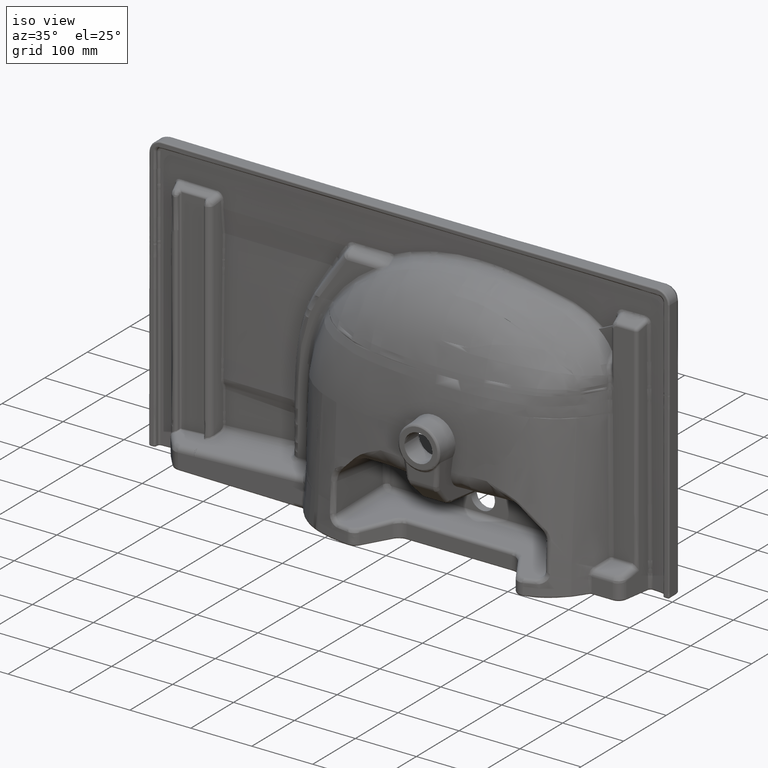
[diagram: clean part render]
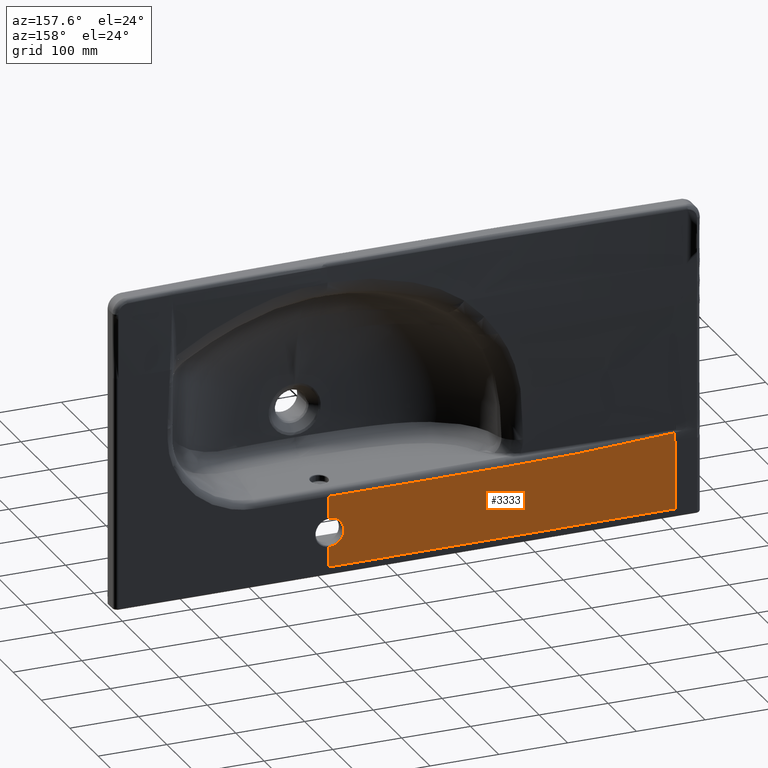
[diagram: tour spotlight — one face highlighted and labeled with its STEP entity id]
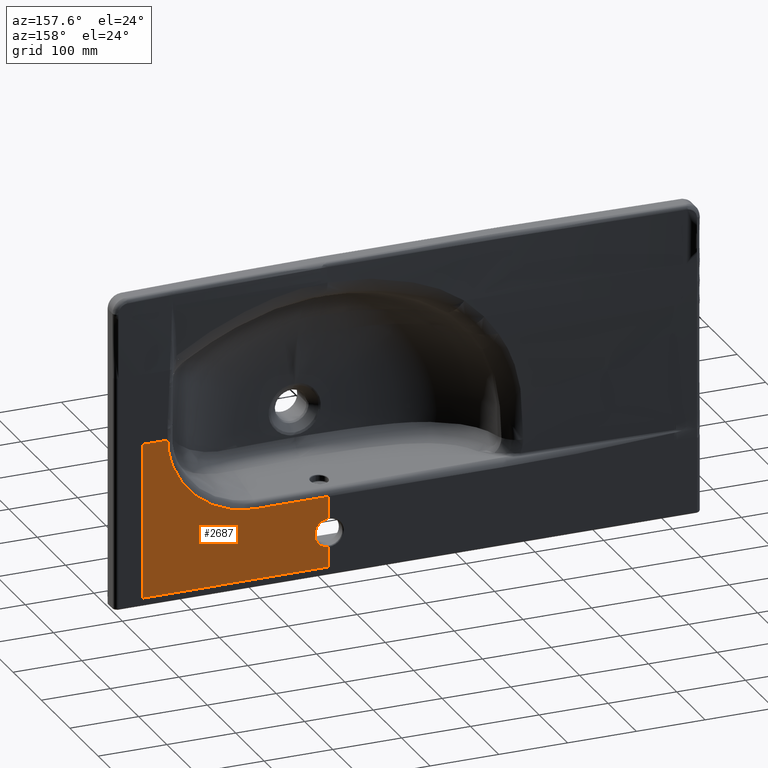
[diagram: tour spotlight — one face highlighted and labeled with its STEP entity id]
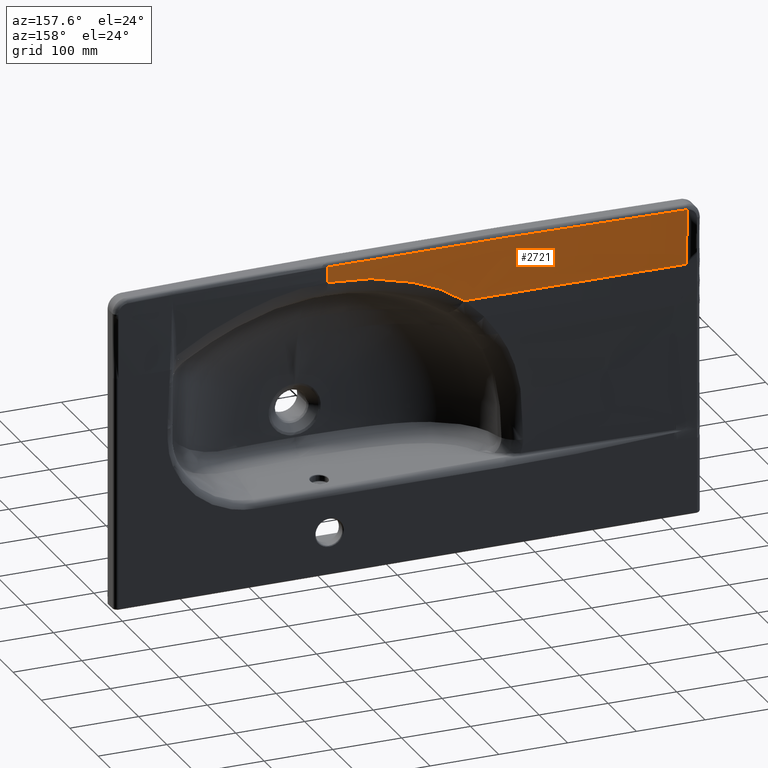
[diagram: tour spotlight — one face highlighted and labeled with its STEP entity id]
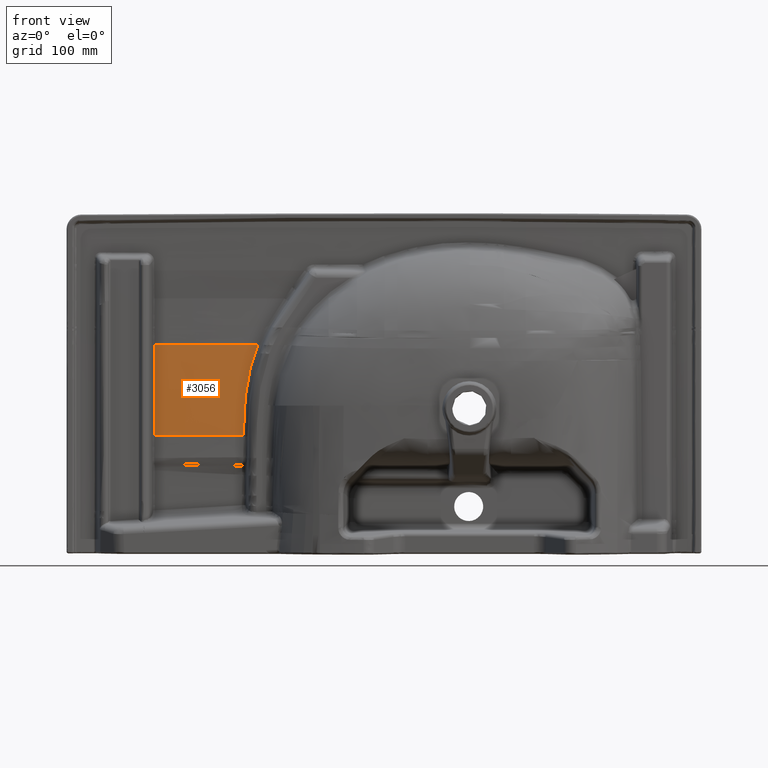
[diagram: tour spotlight — one face highlighted and labeled with its STEP entity id]
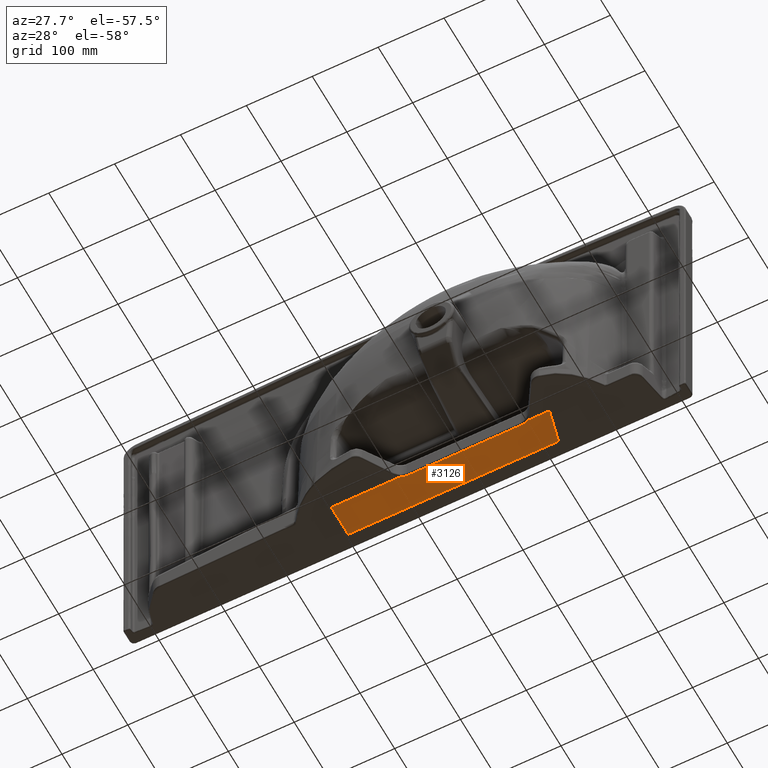
[diagram: tour spotlight — one face highlighted and labeled with its STEP entity id]
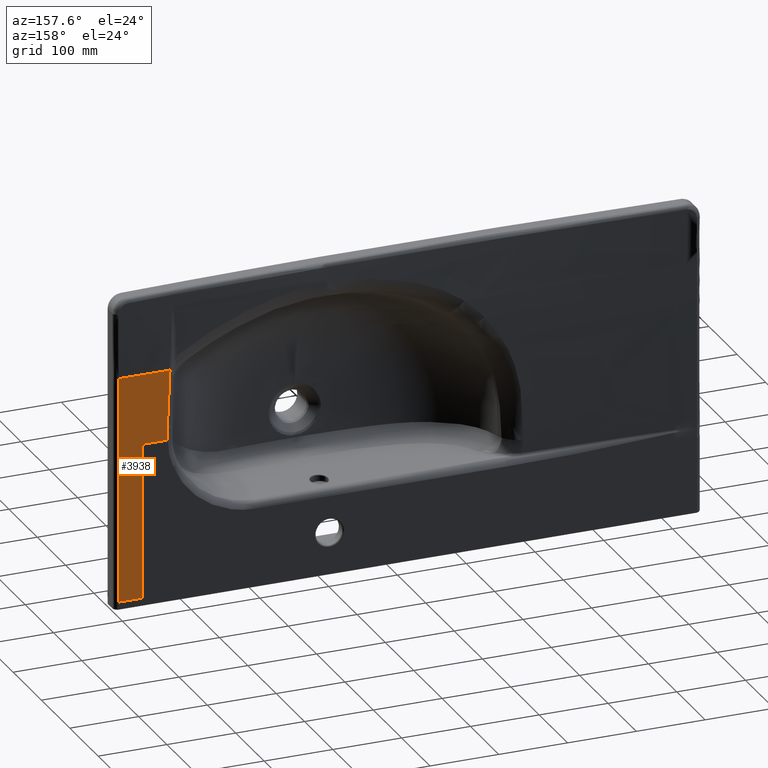
[diagram: tour spotlight — one face highlighted and labeled with its STEP entity id]
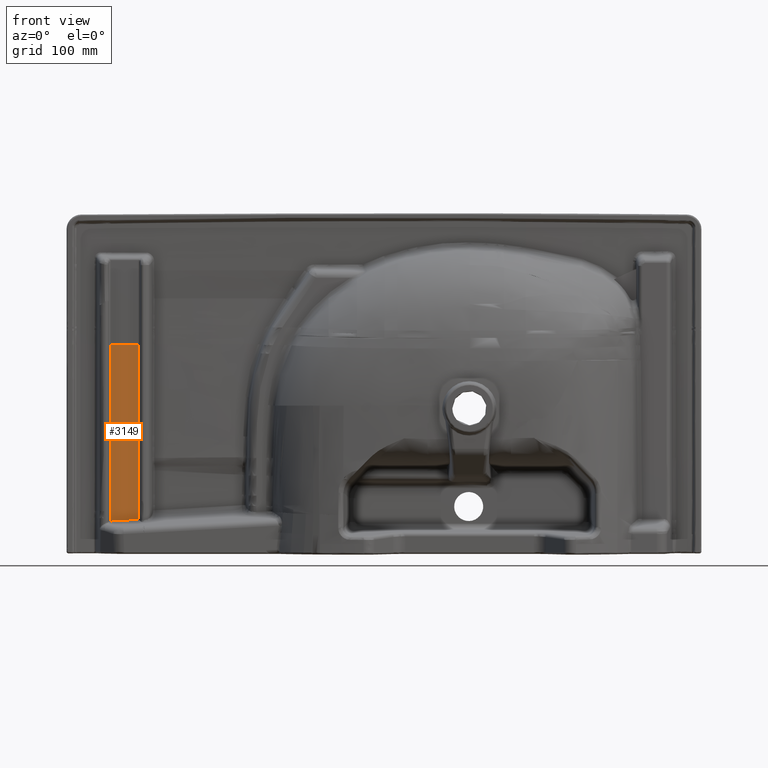
[diagram: tour spotlight — one face highlighted and labeled with its STEP entity id]
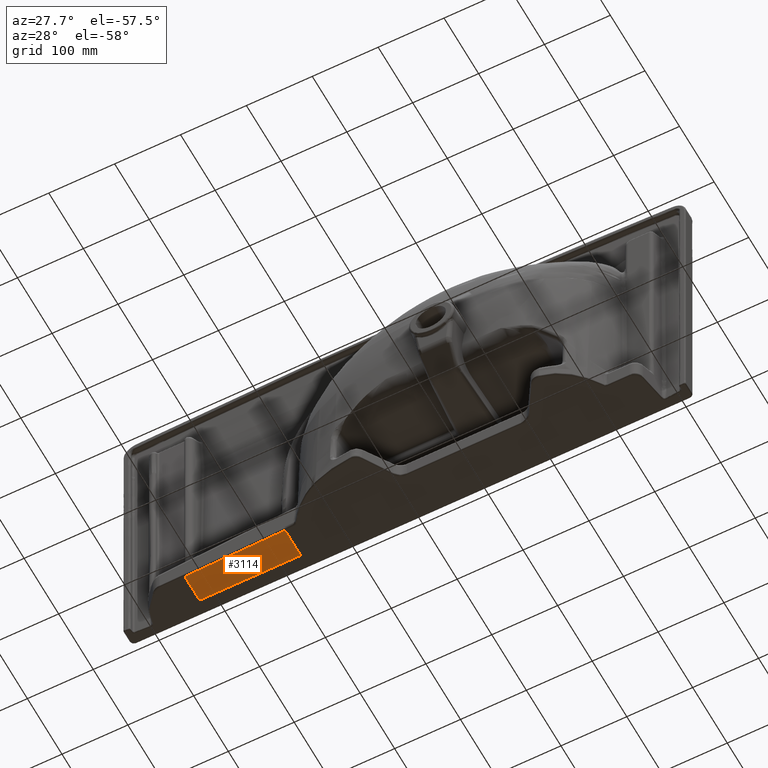
[diagram: tour spotlight — one face highlighted and labeled with its STEP entity id]
A machine part: a face-by-face anatomy tour. The part has 1315 B-rep faces; the first image is the clean iso view, then the 8 largest visible faces are spotlighted one at a time (largest first), each with its STEP entity span.

Face 1 — auxiliary view, entity #3333. In plain terms, the highlighted planar face has unit normal (0, 1, 0).
Definition (entity closure, byte-faithful):
#149=(
BOUNDED_CURVE()
B_SPLINE_CURVE(3,(#88739,#88740,#88741,#88742,#88743,#88744,#88745,#88746,
#88747,#88748),.UNSPECIFIED.,.F.,.F.)
B_SPLINE_CURVE_WITH_KNOTS((4,2,2,2,4),(0.,0.491416612916734,0.626770770470844,
0.762124928024953,1.),.UNSPECIFIED.)
CURVE()
GEOMETRIC_REPRESENTATION_ITEM()
RATIONAL_B_SPLINE_CURVE((1.,1.,1.,1.,1.,1.,1.,1.,1.,1.))
REPRESENTATION_ITEM('')
);
#598=PLANE('',#20790);
#814=LINE('',#32099,#1541);
#818=LINE('',#32110,#1545);
#1111=LINE('',#82694,#1839);
#1164=LINE('',#88737,#1892);
#1541=VECTOR('',#21275,1.);
#1545=VECTOR('',#21279,1.);
#1839=VECTOR('',#22311,1.);
#1892=VECTOR('',#22510,1.);
#3333=ADVANCED_FACE('',(#5050),#598,.T.);
#5050=FACE_OUTER_BOUND('',#6364,.T.);
#6364=EDGE_LOOP('',(#10568,#10569,#10570,#10571,#10572,#10573,#10574,#10575));
#10568=ORIENTED_EDGE('',*,*,#15463,.F.);
#10569=ORIENTED_EDGE('',*,*,#17047,.T.);
#10570=ORIENTED_EDGE('',*,*,#15468,.F.);
#10571=ORIENTED_EDGE('',*,*,#16841,.F.);
#10572=ORIENTED_EDGE('',*,*,#17042,.T.);
#10573=ORIENTED_EDGE('',*,*,#17046,.T.);
#10574=ORIENTED_EDGE('',*,*,#17045,.T.);
#10575=ORIENTED_EDGE('',*,*,#17043,.F.);
#13616=VERTEX_POINT('',#31250);
#13629=VERTEX_POINT('',#32098);
#13630=VERTEX_POINT('',#32100);
#13633=VERTEX_POINT('',#32111);
#14447=VERTEX_POINT('',#82693);
#14557=VERTEX_POINT('',#88611);
#14559=VERTEX_POINT('',#88749);
#14560=VERTEX_POINT('',#88787);
#15463=EDGE_CURVE('',#13629,#13630,#814,.T.);
#15468=EDGE_CURVE('',#13616,#13633,#818,.T.);
#16841=EDGE_CURVE('',#14447,#13616,#1111,.T.);
#17042=EDGE_CURVE('',#14447,#14557,#1164,.T.);
#17043=EDGE_CURVE('',#13630,#14559,#149,.T.);
#17045=EDGE_CURVE('',#14560,#14559,#19508,.T.);
#17046=EDGE_CURVE('',#14557,#14560,#19509,.T.);
#17047=EDGE_CURVE('',#13629,#13633,#19510,.T.);
#19508=B_SPLINE_CURVE_WITH_KNOTS('',3,(#88783,#88784,#88785,#88786),
 .UNSPECIFIED.,.F.,.F.,(4,4),(0.,1.),.UNSPECIFIED.);
#19509=B_SPLINE_CURVE_WITH_KNOTS('',3,(#88788,#88789,#88790,#88791),
 .UNSPECIFIED.,.F.,.F.,(4,4),(0.,1.),.UNSPECIFIED.);
#19510=B_SPLINE_CURVE_WITH_KNOTS('',3,(#88864,#88865,#88866,#88867,#88868,
#88869,#88870,#88871,#88872,#88873,#88874,#88875,#88876,#88877),
 .UNSPECIFIED.,.F.,.F.,(4,2,2,2,2,2,4),(0.,0.25,0.375,0.5,0.625,0.75,1.),
 .UNSPECIFIED.);
#20790=AXIS2_PLACEMENT_3D('',#88878,#22513,#22514);
#21275=DIRECTION('',(3.66007590535741E-016,-1.,0.));
#21279=DIRECTION('',(3.66007590535741E-016,-1.,0.));
#22311=DIRECTION('',(1.,0.,0.));
#22510=DIRECTION('',(0.,-1.,0.));
#22513=DIRECTION('',(0.,0.,1.));
#22514=DIRECTION('',(1.,0.,0.));
#31250=CARTESIAN_POINT('',(3.17907746523282E-013,57.4356621557597,0.106217159820729));
#32098=CARTESIAN_POINT('',(3.2891781429531E-013,-14.0634797007985,0.10621715982073));
#32099=CARTESIAN_POINT('',(3.81639164714898E-013,-158.107897857311,0.10621715982073));
#32100=CARTESIAN_POINT('',(4.5470278143628E-014,-46.2827469961502,0.106217159820732));
#32110=CARTESIAN_POINT('',(3.81639164714898E-013,-158.107897857311,0.10621715982073));
#32111=CARTESIAN_POINT('',(3.13563326220555E-013,27.8878034741736,0.10621715982073));
#82693=CARTESIAN_POINT('',(-504.019066075414,57.4356621557598,0.106217159820728));
#82694=CARTESIAN_POINT('',(-541.47700656614,57.4356621557597,0.106217159820729));
#88611=CARTESIAN_POINT('',(-504.019066075414,-42.0080921086465,0.106217159820728));
#88737=CARTESIAN_POINT('',(-504.019066075414,-385.607897857316,0.106217159820728));
#88739=CARTESIAN_POINT('',(-6.24500451351651E-014,-46.2827469962842,0.106217159820728));
#88740=CARTESIAN_POINT('',(-82.4157904506465,-46.2827469971314,0.106217159820728));
#88741=CARTESIAN_POINT('',(-164.831580905026,-46.2827469953675,0.106217159820729));
#88742=CARTESIAN_POINT('',(-269.947702584893,-46.2827469960969,0.106217159820729));
#88743=CARTESIAN_POINT('',(-292.648033816843,-46.2074607190988,0.106217159820731));
#88744=CARTESIAN_POINT('',(-338.048696278632,-46.9531732827471,0.106217159820731));
#88745=CARTESIAN_POINT('',(-360.749027507747,-47.655532059178,0.10621715982073));
#88746=CARTESIAN_POINT('',(-423.343537269422,-50.1713121606934,0.10621715982073));
#88747=CARTESIAN_POINT('',(-463.238194199468,-52.4138279033647,0.106217159820729));
#88748=CARTESIAN_POINT('',(-503.132068387611,-54.6730683248413,0.106217159820749));
#88749=CARTESIAN_POINT('',(-503.132099388589,-54.6731555118038,0.107888893968717));
#88783=CARTESIAN_POINT('',(-503.132068387611,-42.0080921086466,0.106217159820728));
#88784=CARTESIAN_POINT('',(-503.132080629238,-46.229774181596,0.106217159820728));
#88785=CARTESIAN_POINT('',(-503.132092870864,-50.4514562545453,0.106217159820728));
#88786=CARTESIAN_POINT('',(-503.132105112491,-54.6731383274947,0.106217159820728));
#88787=CARTESIAN_POINT('',(-503.132068387611,-42.0080921086466,0.106217159820729));
#88788=CARTESIAN_POINT('',(-504.019066075414,-42.0080921086466,0.106217159820728));
#88789=CARTESIAN_POINT('',(-503.723400179479,-42.0080921086466,0.106217159820728));
#88790=CARTESIAN_POINT('',(-503.427734283545,-42.0080921086466,0.106217159820728));
#88791=CARTESIAN_POINT('',(-503.132068387611,-42.0080921086466,0.106217159820728));
#88864=CARTESIAN_POINT('',(3.29235046263519E-013,-14.0634797007986,0.106217159820728));
#88865=CARTESIAN_POINT('',(-5.69809019747056,-14.3416826665858,0.106217159820728));
#88866=CARTESIAN_POINT('',(-11.4479155328702,-12.1460110882703,0.106217159820728));
#88867=CARTESIAN_POINT('',(-17.5507761280391,-6.31093326711224,0.106217159820728));
#88868=CARTESIAN_POINT('',(-19.1825678463299,-3.92673734176329,0.106217159820724));
#88869=CARTESIAN_POINT('',(-21.4048146123892,1.28540675195654,0.106217159820724));
#88870=CARTESIAN_POINT('',(-21.9951901013856,4.07155730679506,0.10621715982073));
#88871=CARTESIAN_POINT('',(-21.9916047756276,9.77942734763317,0.10621715982073));
#88872=CARTESIAN_POINT('',(-21.4116095208351,12.5218710591779,0.10621715982073));
#88873=CARTESIAN_POINT('',(-19.1772435080818,17.7646404347856,0.10621715982073));
#88874=CARTESIAN_POINT('',(-17.5721964096692,20.1164961087354,0.106217159820731));
#88875=CARTESIAN_POINT('',(-11.3844657824351,26.027533540295,0.106217159820731));
#88876=CARTESIAN_POINT('',(-5.69971743443026,28.1661391552205,0.106217159820728));
#88877=CARTESIAN_POINT('',(3.23375768572796E-013,27.8878034741735,0.106217159820728));
#88878=CARTESIAN_POINT('',(-541.47700656614,-385.607897857316,0.106217159820728));

Face 2 — auxiliary view, entity #2687. In plain terms, the highlighted planar face has unit normal (0, 1, 0).
Definition (entity closure, byte-faithful):
#456=PLANE('',#20347);
#811=LINE('',#31249,#1536);
#814=LINE('',#32099,#1541);
#815=LINE('',#32101,#1542);
#816=LINE('',#32107,#1543);
#817=LINE('',#32109,#1544);
#818=LINE('',#32110,#1545);
#1536=VECTOR('',#21268,1.);
#1541=VECTOR('',#21275,1.);
#1542=VECTOR('',#21276,1.);
#1543=VECTOR('',#21277,1.);
#1544=VECTOR('',#21278,1.);
#1545=VECTOR('',#21279,1.);
#2687=ADVANCED_FACE('',(#4408),#456,.T.);
#4408=FACE_OUTER_BOUND('',#5714,.T.);
#5714=EDGE_LOOP('',(#7513,#7514,#7515,#7516,#7517,#7518,#7519,#7520,#7521,
#7522,#7523));
#7513=ORIENTED_EDGE('',*,*,#15461,.T.);
#7514=ORIENTED_EDGE('',*,*,#15462,.T.);
#7515=ORIENTED_EDGE('',*,*,#15463,.T.);
#7516=ORIENTED_EDGE('',*,*,#15464,.F.);
#7517=ORIENTED_EDGE('',*,*,#15459,.F.);
#7518=ORIENTED_EDGE('',*,*,#15465,.F.);
#7519=ORIENTED_EDGE('',*,*,#15466,.F.);
#7520=ORIENTED_EDGE('',*,*,#15467,.F.);
#7521=ORIENTED_EDGE('',*,*,#15445,.F.);
#7522=ORIENTED_EDGE('',*,*,#15468,.T.);
#7523=ORIENTED_EDGE('',*,*,#15469,.T.);
#13616=VERTEX_POINT('',#31250);
#13617=VERTEX_POINT('',#31251);
#13625=VERTEX_POINT('',#31962);
#13626=VERTEX_POINT('',#31977);
#13627=VERTEX_POINT('',#32092);
#13628=VERTEX_POINT('',#32093);
#13629=VERTEX_POINT('',#32098);
#13630=VERTEX_POINT('',#32100);
#13631=VERTEX_POINT('',#32106);
#13632=VERTEX_POINT('',#32108);
#13633=VERTEX_POINT('',#32111);
#15445=EDGE_CURVE('',#13616,#13617,#811,.T.);
#15459=EDGE_CURVE('',#13625,#13626,#18511,.T.);
#15461=EDGE_CURVE('',#13627,#13628,#18513,.T.);
#15462=EDGE_CURVE('',#13628,#13629,#18514,.T.);
#15463=EDGE_CURVE('',#13629,#13630,#814,.T.);
#15464=EDGE_CURVE('',#13626,#13630,#815,.T.);
#15465=EDGE_CURVE('',#13631,#13625,#18515,.T.);
#15466=EDGE_CURVE('',#13632,#13631,#816,.T.);
#15467=EDGE_CURVE('',#13617,#13632,#817,.T.);
#15468=EDGE_CURVE('',#13616,#13633,#818,.T.);
#15469=EDGE_CURVE('',#13633,#13627,#18516,.T.);
#18511=B_SPLINE_CURVE_WITH_KNOTS('',3,(#31963,#31964,#31965,#31966,#31967,
#31968,#31969,#31970,#31971,#31972,#31973,#31974,#31975,#31976),
 .UNSPECIFIED.,.F.,.F.,(4,2,2,2,2,2,4),(0.,0.25,0.375,0.5,0.625,0.75,1.),
 .UNSPECIFIED.);
#18513=B_SPLINE_CURVE_WITH_KNOTS('',3,(#32080,#32081,#32082,#32083,#32084,
#32085,#32086,#32087,#32088,#32089,#32090,#32091),.UNSPECIFIED.,.F.,.F.,
(4,2,2,2,2,4),(0.,0.25,0.5,0.625,0.75,1.),.UNSPECIFIED.);
#18514=B_SPLINE_CURVE_WITH_KNOTS('',3,(#32094,#32095,#32096,#32097),
 .UNSPECIFIED.,.F.,.F.,(4,4),(0.,1.),.UNSPECIFIED.);
#18515=B_SPLINE_CURVE_WITH_KNOTS('',3,(#32102,#32103,#32104,#32105),
 .UNSPECIFIED.,.F.,.F.,(4,4),(0.,1.),.UNSPECIFIED.);
#18516=B_SPLINE_CURVE_WITH_KNOTS('',3,(#32112,#32113,#32114,#32115),
 .UNSPECIFIED.,.F.,.F.,(4,4),(0.,1.),.UNSPECIFIED.);
#20347=AXIS2_PLACEMENT_3D('',#32116,#21280,#21281);
#21268=DIRECTION('',(1.,0.,0.));
#21275=DIRECTION('',(3.66007590535741E-016,-1.,0.));
#21276=DIRECTION('',(-1.,5.22044161745777E-015,0.));
#21277=DIRECTION('',(-1.,0.,0.));
#21278=DIRECTION('',(0.,-1.,0.));
#21279=DIRECTION('',(3.66007590535741E-016,-1.,0.));
#21280=DIRECTION('',(0.,0.,1.));
#21281=DIRECTION('',(1.,0.,0.));
#31249=CARTESIAN_POINT('',(-541.47700656614,57.4356621557597,0.106217159820729));
#31250=CARTESIAN_POINT('',(3.17907746523282E-013,57.4356621557597,0.106217159820729));
#31251=CARTESIAN_POINT('',(270.616368166448,57.4356621557598,0.106217159820729));
#31962=CARTESIAN_POINT('',(226.355082390962,-128.383308463468,0.10620380534889));
#31963=CARTESIAN_POINT('',(226.354617320344,-128.383493115068,0.106199150572051));
#31964=CARTESIAN_POINT('',(221.596138661918,-116.281778739739,0.106199337236329));
#31965=CARTESIAN_POINT('',(214.962100265724,-104.890747978155,0.106199454421758));
#31966=CARTESIAN_POINT('',(202.911072750374,-89.827012399227,0.106199528739728));
#31967=CARTESIAN_POINT('',(198.539903763326,-85.1241480887617,0.106199536881656));
#31968=CARTESIAN_POINT('',(189.058827912083,-76.3604380915556,0.106199518454517));
#31969=CARTESIAN_POINT('',(183.926256262375,-72.287687525452,0.106199491840819));
#31970=CARTESIAN_POINT('',(173.25471993931,-65.0450300618052,0.106199406139892));
#31971=CARTESIAN_POINT('',(167.689385783536,-61.8424031995059,0.106199347188423));
#31972=CARTESIAN_POINT('',(156.086696938094,-56.2707228131066,0.106199194309791));
#31973=CARTESIAN_POINT('',(150.004792602012,-53.8937382506424,0.106199099083426));
#31974=CARTESIAN_POINT('',(131.424005228947,-48.2033946720243,0.106198770609271));
#31975=CARTESIAN_POINT('',(118.718453524064,-46.2827458863297,0.106198497612174));
#31976=CARTESIAN_POINT('',(105.686427405937,-46.2827469881555,0.106198150782665));
#31977=CARTESIAN_POINT('',(105.686427405937,-46.2827469907503,0.106207655302272));
#32080=CARTESIAN_POINT('',(0.0792334064624198,27.8837770571822,0.106217159820728));
#32081=CARTESIAN_POINT('',(5.43376767110777,27.6005429825294,0.106217159820728));
#32082=CARTESIAN_POINT('',(10.5986768638729,25.2081626015606,0.106217159820727));
#32083=CARTESIAN_POINT('',(17.8696959761077,17.5373969315864,0.106217159820727));
#32084=CARTESIAN_POINT('',(20.0097727051353,12.2635093432463,0.106217159820725));
#32085=CARTESIAN_POINT('',(20.0050046476134,4.21781908671252,0.106217159820725));
#32086=CARTESIAN_POINT('',(19.4792118243801,1.59613284797841,0.10621715982073));
#32087=CARTESIAN_POINT('',(17.4997787043709,-3.35107136469839,0.10621715982073));
#32088=CARTESIAN_POINT('',(16.0529849964594,-5.63099102983842,0.106217159820724));
#32089=CARTESIAN_POINT('',(10.5801012725313,-11.4007742162655,0.106217159820724));
#32090=CARTESIAN_POINT('',(5.43249394560012,-13.7762872492956,0.106217159820728));
#32091=CARTESIAN_POINT('',(0.0792333267444508,-14.0594536673352,0.106217159820728));
#32092=CARTESIAN_POINT('',(0.0792334068704549,27.883777064911,0.106217159820728));
#32093=CARTESIAN_POINT('',(0.0792333267444503,-14.0594536673352,0.106217159820728));
#32094=CARTESIAN_POINT('',(0.0792333271527097,-14.0594536750682,0.106217159820728));
#32095=CARTESIAN_POINT('',(0.0528249222891153,-14.0608478848349,0.106217159820728));
#32096=CARTESIAN_POINT('',(0.0264137189134642,-14.0621900801214,0.106217159820728));
#32097=CARTESIAN_POINT('',(3.29235046263519E-013,-14.0634797007986,0.106217159820728));
#32098=CARTESIAN_POINT('',(3.2891781429531E-013,-14.0634797007985,0.10621715982073));
#32099=CARTESIAN_POINT('',(3.81639164714898E-013,-158.107897857311,0.10621715982073));
#32100=CARTESIAN_POINT('',(4.5470278143628E-014,-46.2827469961502,0.106217159820732));
#32101=CARTESIAN_POINT('',(-114.811006566141,-46.2827469959397,0.106217159820729));
#32102=CARTESIAN_POINT('',(234.127512492295,-168.775085306999,0.106190350211092));
#32103=CARTESIAN_POINT('',(233.638193970001,-154.997496047211,0.106186958665212));
#32104=CARTESIAN_POINT('',(231.594766594948,-141.174331971504,0.106183876447546));
#32105=CARTESIAN_POINT('',(226.355548750188,-128.383126892193,0.106182575043035));
#32106=CARTESIAN_POINT('',(234.1274931907,-168.775085992502,0.106203755015927));
#32107=CARTESIAN_POINT('',(-541.47700656614,-168.775086678005,0.106217159820726));
#32108=CARTESIAN_POINT('',(270.616368166448,-168.775086678005,0.10621715982073));
#32109=CARTESIAN_POINT('',(270.616368166448,-385.607897857316,0.106217159820728));
#32110=CARTESIAN_POINT('',(3.81639164714898E-013,-158.107897857311,0.10621715982073));
#32111=CARTESIAN_POINT('',(3.13563326220555E-013,27.8878034741736,0.10621715982073));
#32112=CARTESIAN_POINT('',(3.13859465930597E-013,27.8878034741735,0.106217159820728));
#32113=CARTESIAN_POINT('',(0.0264137398757234,27.8865136056209,0.106217159820728));
#32114=CARTESIAN_POINT('',(0.0528249691397224,27.8851712785642,0.106217159820728));
#32115=CARTESIAN_POINT('',(0.0792334068704549,27.883777064911,0.106217159820728));
#32116=CARTESIAN_POINT('',(-541.47700656614,-385.607897857316,0.106217159820728));

Face 3 — auxiliary view, entity #2721. In plain terms, the highlighted face is a freeform B-spline surface patch.
Definition (entity closure, byte-faithful):
#2271=B_SPLINE_SURFACE_WITH_KNOTS('',3,3,((#42226,#42227,#42228,#42229,
#42230,#42231,#42232,#42233,#42234,#42235,#42236,#42237,#42238,#42239,#42240,
#42241),(#42242,#42243,#42244,#42245,#42246,#42247,#42248,#42249,#42250,
#42251,#42252,#42253,#42254,#42255,#42256,#42257),(#42258,#42259,#42260,
#42261,#42262,#42263,#42264,#42265,#42266,#42267,#42268,#42269,#42270,#42271,
#42272,#42273),(#42274,#42275,#42276,#42277,#42278,#42279,#42280,#42281,
#42282,#42283,#42284,#42285,#42286,#42287,#42288,#42289),(#42290,#42291,
#42292,#42293,#42294,#42295,#42296,#42297,#42298,#42299,#42300,#42301,#42302,
#42303,#42304,#42305),(#42306,#42307,#42308,#42309,#42310,#42311,#42312,
#42313,#42314,#42315,#42316,#42317,#42318,#42319,#42320,#42321),(#42322,
#42323,#42324,#42325,#42326,#42327,#42328,#42329,#42330,#42331,#42332,#42333,
#42334,#42335,#42336,#42337)),.UNSPECIFIED.,.F.,.F.,.F.,(4,1,1,1,4),(4,
1,1,1,1,1,1,1,1,1,1,1,1,4),(0.,0.2,0.52,0.84,1.),(0.,0.2,0.36538854687315,
0.448082820309725,0.5307770937463,0.551450662105444,0.561787446285016,0.572124230464588,
0.592797798823732,0.613471367182875,0.69616564061945,0.778859914056025,
0.8615541874926,1.),.UNSPECIFIED.);
#2721=ADVANCED_FACE('',(#4442),#2271,.F.);
#4442=FACE_OUTER_BOUND('',#5748,.T.);
#5748=EDGE_LOOP('',(#7683,#7684,#7685,#7686,#7687));
#7683=ORIENTED_EDGE('',*,*,#15575,.T.);
#7684=ORIENTED_EDGE('',*,*,#15576,.T.);
#7685=ORIENTED_EDGE('',*,*,#15577,.F.);
#7686=ORIENTED_EDGE('',*,*,#15569,.F.);
#7687=ORIENTED_EDGE('',*,*,#15549,.T.);
#13479=VERTEX_POINT('',#23992);
#13685=VERTEX_POINT('',#41780);
#13700=VERTEX_POINT('',#41972);
#13704=VERTEX_POINT('',#42118);
#13705=VERTEX_POINT('',#42221);
#15549=EDGE_CURVE('',#13685,#13479,#18567,.T.);
#15569=EDGE_CURVE('',#13685,#13700,#18587,.T.);
#15575=EDGE_CURVE('',#13479,#13704,#18593,.T.);
#15576=EDGE_CURVE('',#13704,#13705,#18594,.T.);
#15577=EDGE_CURVE('',#13700,#13705,#18595,.T.);
#18567=B_SPLINE_CURVE_WITH_KNOTS('',3,(#41776,#41777,#41778,#41779),
 .UNSPECIFIED.,.F.,.F.,(4,4),(0.,1.),.UNSPECIFIED.);
#18587=B_SPLINE_CURVE_WITH_KNOTS('',3,(#41965,#41966,#41967,#41968,#41969,
#41970,#41971),.UNSPECIFIED.,.F.,.F.,(4,3,4),(0.,0.505866875422544,1.),
 .UNSPECIFIED.);
#18593=B_SPLINE_CURVE_WITH_KNOTS('',3,(#42119,#42120,#42121,#42122),
 .UNSPECIFIED.,.F.,.F.,(4,4),(0.,1.),.UNSPECIFIED.);
#18594=B_SPLINE_CURVE_WITH_KNOTS('',3,(#42203,#42204,#42205,#42206,#42207,
#42208,#42209,#42210,#42211,#42212,#42213,#42214,#42215,#42216,#42217,#42218,
#42219,#42220),.UNSPECIFIED.,.F.,.F.,(4,2,2,2,2,2,2,2,4),(0.,0.125,0.25,
0.375,0.5,0.625,0.75,0.875,1.),.UNSPECIFIED.);
#18595=B_SPLINE_CURVE_WITH_KNOTS('',3,(#42222,#42223,#42224,#42225),
 .UNSPECIFIED.,.F.,.F.,(4,4),(0.,1.),.UNSPECIFIED.);
#23992=CARTESIAN_POINT('',(0.00107677511551454,-381.493112712071,-4.90067066176906));
#41776=CARTESIAN_POINT('',(-521.587334125702,-379.62239633034,-0.340244903977643));
#41777=CARTESIAN_POINT('',(-347.765844661524,-380.953673638161,-4.68552116525192));
#41778=CARTESIAN_POINT('',(-173.875103517704,-381.756667752848,-6.14534209331214));
#41779=CARTESIAN_POINT('',(0.00108487920533761,-381.492541964415,-4.90074799756914));
#41780=CARTESIAN_POINT('',(-521.587336576359,-379.622527686874,-0.340245295468438));
#41965=CARTESIAN_POINT('',(-521.587334125702,-379.62239633034,-0.34024490397764));
#41966=CARTESIAN_POINT('',(-521.335828434281,-366.141254388373,-0.300164436225889));
#41967=CARTESIAN_POINT('',(-521.08440334554,-352.660096306645,-0.263315402554289));
#41968=CARTESIAN_POINT('',(-520.833300995188,-339.178908514385,-0.239379328440537));
#41969=CARTESIAN_POINT('',(-520.588023061691,-326.010422125723,-0.21599846089221));
#41970=CARTESIAN_POINT('',(-520.342685029935,-312.84192371246,-0.19022605613855));
#41971=CARTESIAN_POINT('',(-520.096720781035,-299.673527589224,-0.139365188945907));
#41972=CARTESIAN_POINT('',(-520.096721045464,-299.673543201466,-0.139390806277187));
#42118=CARTESIAN_POINT('',(0.0188558508514925,-359.312734477806,-3.96740864022551));
#42119=CARTESIAN_POINT('',(0.00108706514102168,-381.492999513126,-4.9007707342712));
#42120=CARTESIAN_POINT('',(0.00108571415267508,-374.106457348925,-4.5334652728759));
#42121=CARTESIAN_POINT('',(0.00107717512805519,-366.717949268498,-4.18513795038626));
#42122=CARTESIAN_POINT('',(0.00108827645083748,-359.326370207681,-3.96837475717889));
#42203=CARTESIAN_POINT('',(0.0191486943529019,-359.340713589469,-3.96869333693151));
#42204=CARTESIAN_POINT('',(-8.86643458867827,-359.431283283673,-4.02164417986603));
#42205=CARTESIAN_POINT('',(-17.7809573439585,-359.375869733963,-4.0648204692562));
#42206=CARTESIAN_POINT('',(-35.396334206586,-358.282400317191,-4.10754855025444));
#42207=CARTESIAN_POINT('',(-44.0930369251561,-357.207841485728,-4.10610891793387));
#42208=CARTESIAN_POINT('',(-61.4028159696638,-354.661032154106,-4.08480260182163));
#42209=CARTESIAN_POINT('',(-70.0144328767716,-353.181839974567,-4.06470735006872));
#42210=CARTESIAN_POINT('',(-87.1114301153336,-349.622994571455,-4.00623020650684));
#42211=CARTESIAN_POINT('',(-95.5685710106061,-347.408994389921,-3.96535243656055));
#42212=CARTESIAN_POINT('',(-112.370475011038,-342.446397006772,-3.87139872102927));
#42213=CARTESIAN_POINT('',(-120.734475825802,-339.789327943805,-3.81957972642014));
#42214=CARTESIAN_POINT('',(-137.309480826583,-333.74745252792,-3.69295704058683));
#42215=CARTESIAN_POINT('',(-145.604649610582,-330.610709859792,-3.62237160093291));
#42216=CARTESIAN_POINT('',(-161.514759125117,-323.215545026597,-3.43395657752522));
#42217=CARTESIAN_POINT('',(-169.243028327495,-319.114011061076,-3.31871440427373));
#42218=CARTESIAN_POINT('',(-184.264621067934,-310.1368285777,-3.02826972043408));
#42219=CARTESIAN_POINT('',(-191.470346173961,-305.105031188883,-2.84872357750995));
#42220=CARTESIAN_POINT('',(-198.378168703944,-299.543112936435,-2.6253899011663));
#42221=CARTESIAN_POINT('',(-198.378245463887,-299.543193847152,-2.62547480484633));
#42222=CARTESIAN_POINT('',(-520.096721309893,-299.673558813708,-0.139416423608434));
#42223=CARTESIAN_POINT('',(-412.859702682704,-299.61363303753,-1.28286834997273));
#42224=CARTESIAN_POINT('',(-305.619878182385,-299.571331233102,-2.0900348623724));
#42225=CARTESIAN_POINT('',(-198.378267496383,-299.543264810019,-2.62557411755788));
#42226=CARTESIAN_POINT('',(167.28554645426,-415.196764383058,-4.15389253869563));
#42227=CARTESIAN_POINT('',(167.290308920846,-404.067770417978,-3.7247557955718));
#42228=CARTESIAN_POINT('',(167.297998628186,-383.727855711878,-2.98138670476558));
#42229=CARTESIAN_POINT('',(167.304408443583,-358.761097848779,-2.1911773373295));
#42230=CARTESIAN_POINT('',(167.310019490159,-340.309917476199,-2.56391858506383));
#42231=CARTESIAN_POINT('',(167.316166391224,-329.928023848436,-2.9048418135176));
#42232=CARTESIAN_POINT('',(167.314548948221,-323.584072153706,-3.07646346079433));
#42233=CARTESIAN_POINT('',(167.318961056705,-321.277290233741,-3.13437932750135));
#42234=CARTESIAN_POINT('',(167.314744246467,-318.970505058871,-3.18902026320067));
#42235=CARTESIAN_POINT('',(167.301036100243,-316.087089270212,-3.25121945340123));
#42236=CARTESIAN_POINT('',(167.286235303186,-309.167457851861,-3.37974075494513));
#42237=CARTESIAN_POINT('',(167.292563565799,-298.789861346055,-3.48699951895002));
#42238=CARTESIAN_POINT('',(167.286074040922,-284.958488506888,-3.35839074330695));
#42239=CARTESIAN_POINT('',(167.278776105702,-268.031669744683,-2.84312688553725));
#42240=CARTESIAN_POINT('',(167.27124808942,-255.730483981136,-2.16305499440444));
#42241=CARTESIAN_POINT('',(167.265883623174,-248.034758365246,-1.64762162016983));
#42242=CARTESIAN_POINT('',(111.527697403861,-416.089692627234,-5.33760217197289));
#42243=CARTESIAN_POINT('',(111.530603446307,-404.891111186663,-4.82485124040449));
#42244=CARTESIAN_POINT('',(111.535228583175,-384.424689180022,-3.92563009602243));
#42245=CARTESIAN_POINT('',(111.538857109178,-359.304660152221,-2.93505481843542));
#42246=CARTESIAN_POINT('',(111.542161096293,-340.741968472871,-3.08420542355607));
#42247=CARTESIAN_POINT('',(111.545987917335,-330.297593271585,-3.28901330800272));
#42248=CARTESIAN_POINT('',(111.544718876312,-323.915423149088,-3.38040573218098));
#42249=CARTESIAN_POINT('',(111.547586805977,-321.594726282278,-3.40949932332579));
#42250=CARTESIAN_POINT('',(111.544698920712,-319.274041193929,-3.43560201523352));
#42251=CARTESIAN_POINT('',(111.53545744173,-316.373256928622,-3.46256553375006));
#42252=CARTESIAN_POINT('',(111.525316236384,-309.411856722462,-3.50780162752545));
#42253=CARTESIAN_POINT('',(111.529000280709,-298.971433316029,-3.49551377504809));
#42254=CARTESIAN_POINT('',(111.523520213483,-285.05587057151,-3.23179908150611));
#42255=CARTESIAN_POINT('',(111.516682892208,-268.02492865692,-2.58501793334611));
#42256=CARTESIAN_POINT('',(111.509666025641,-255.646458739896,-1.82384436590014));
#42257=CARTESIAN_POINT('',(111.504673274589,-247.901908045003,-1.26193477437879));
#42258=CARTESIAN_POINT('',(-33.4512703709999,-417.851763719516,-7.66951618562337));
#42259=CARTESIAN_POINT('',(-33.4525318208156,-406.515513940729,-6.99779836283679));
#42260=CARTESIAN_POINT('',(-33.4546702273355,-385.799204847578,-5.80011014082046));
#42261=CARTESIAN_POINT('',(-33.4567961492531,-360.377589084867,-4.41949088996673));
#42262=CARTESIAN_POINT('',(-33.4584002580695,-341.596513601587,-4.08394235014233));
#42263=CARTESIAN_POINT('',(-33.4599923745839,-331.029930705582,-3.98920838596134));
#42264=CARTESIAN_POINT('',(-33.4599807940404,-324.572986468718,-3.90522363584473));
#42265=CARTESIAN_POINT('',(-33.460991446971,-322.225053939318,-3.8714588762591));
#42266=CARTESIAN_POINT('',(-33.4602878449752,-319.87717227513,-3.83544170003997));
#42267=CARTESIAN_POINT('',(-33.4577456362091,-316.942408969554,-3.78589192934218));
#42268=CARTESIAN_POINT('',(-33.4553630561067,-309.899239512715,-3.6508251801134));
#42269=CARTESIAN_POINT('',(-33.4579407088283,-299.335710561092,-3.3820741705731));
#42270=CARTESIAN_POINT('',(-33.45997849216,-285.254913257911,-2.83956148488182));
#42271=CARTESIAN_POINT('',(-33.4646167631749,-268.018969148857,-1.93960058788262));
#42272=CARTESIAN_POINT('',(-33.4695757511496,-255.487392036103,-1.03216873673525));
#42273=CARTESIAN_POINT('',(-33.4731457180265,-247.645841340699,-0.389867923518611));
#42274=CARTESIAN_POINT('',(-267.696001834254,-417.564749134784,-7.26036042359984));
#42275=CARTESIAN_POINT('',(-267.700303808142,-406.248362989554,-6.65905792331501));
#42276=CARTESIAN_POINT('',(-267.70662363551,-385.570968752692,-5.57702084120179));
#42277=CARTESIAN_POINT('',(-267.709774538849,-360.20491686076,-4.29941195811362));
#42278=CARTESIAN_POINT('',(-267.713201661774,-341.471722864932,-3.7220524212177));
#42279=CARTESIAN_POINT('',(-267.72011313184,-330.933096159062,-3.44784821952867));
#42280=CARTESIAN_POINT('',(-267.715934106982,-324.493088236039,-3.26658719242885));
#42281=CARTESIAN_POINT('',(-267.722446981499,-322.151241551873,-3.19892758822006));
#42282=CARTESIAN_POINT('',(-267.715178565165,-319.809508873054,-3.13020850081447));
#42283=CARTESIAN_POINT('',(-267.692647192163,-316.882458743045,-3.04161729996652));
#42284=CARTESIAN_POINT('',(-267.667744338514,-309.85744624336,-2.81822881632466));
#42285=CARTESIAN_POINT('',(-267.677002725503,-299.320423108038,-2.43959622488111));
#42286=CARTESIAN_POINT('',(-267.668900809979,-285.273199934286,-1.85259096044371));
#42287=CARTESIAN_POINT('',(-267.664378626622,-268.074119243879,-1.04073254682594));
#42288=CARTESIAN_POINT('',(-267.6619315689,-255.5630721012,-0.258831332706602));
#42289=CARTESIAN_POINT('',(-267.66064777397,-247.732522244693,0.286829341047316));
#42290=CARTESIAN_POINT('',(-490.713301477445,-413.606876248699,-1.97235845507811));
#42291=CARTESIAN_POINT('',(-490.726120942035,-402.594768512511,-1.8123066047891));
#42292=CARTESIAN_POINT('',(-490.746693696666,-382.475773633109,-1.52403431369167));
#42293=CARTESIAN_POINT('',(-490.76341582858,-357.801965766294,-1.18286759609228));
#42294=CARTESIAN_POINT('',(-490.777876891822,-339.586327040624,-0.994076691832071));
#42295=CARTESIAN_POINT('',(-490.795084389618,-329.339799320356,-0.897059915852761));
#42296=CARTESIAN_POINT('',(-490.790132467064,-323.078155357194,-0.835889597421556));
#42297=CARTESIAN_POINT('',(-490.803047769665,-320.8010989478,-0.813307291350138));
#42298=CARTESIAN_POINT('',(-490.790689366251,-318.524216677216,-0.790801629164499));
#42299=CARTESIAN_POINT('',(-490.750573465291,-315.678255218314,-0.761725742063208));
#42300=CARTESIAN_POINT('',(-490.707709383225,-308.847517753852,-0.686295628506168));
#42301=CARTESIAN_POINT('',(-490.728560351006,-298.601212295719,-0.551125372872115));
#42302=CARTESIAN_POINT('',(-490.717774881731,-284.939929873483,-0.385894839156728));
#42303=CARTESIAN_POINT('',(-490.713068865466,-268.209469071694,-0.226400074441037));
#42304=CARTESIAN_POINT('',(-490.709784406142,-256.033497688942,0.0222078352411915));
#42305=CARTESIAN_POINT('',(-490.707769522069,-248.41095976595,0.216806169224767));
#42306=CARTESIAN_POINT('',(-624.432539377808,-409.418323244186,3.26059361216498));
#42307=CARTESIAN_POINT('',(-624.45749372707,-398.72947655168,3.00298293796699));
#42308=CARTESIAN_POINT('',(-624.499451396793,-379.202561164641,2.53563464135281));
#42309=CARTESIAN_POINT('',(-624.540053808831,-355.259312530602,1.97234955724998));
#42310=CARTESIAN_POINT('',(-624.572752773228,-337.586898726287,1.67510012470343));
#42311=CARTESIAN_POINT('',(-624.602672752204,-327.646519511964,1.52354866931763));
#42312=CARTESIAN_POINT('',(-624.601250619364,-321.571881716965,1.42573047725147));
#42313=CARTESIAN_POINT('',(-624.619459570937,-319.362785942341,1.38965400978728));
#42314=CARTESIAN_POINT('',(-624.605499367395,-317.153900386605,1.35281922218784));
#42315=CARTESIAN_POINT('',(-624.556647989811,-314.392950217753,1.30667042772457));
#42316=CARTESIAN_POINT('',(-624.507363747059,-307.766037184147,1.19848833527119));
#42317=CARTESIAN_POINT('',(-624.541705127858,-297.825051446911,1.0453254134803));
#42318=CARTESIAN_POINT('',(-624.538022679058,-284.56985229503,0.767816740843412));
#42319=CARTESIAN_POINT('',(-624.54387761861,-268.334301780563,0.303593514096832));
#42320=CARTESIAN_POINT('',(-624.547857589645,-256.514941268097,0.0631504283022818));
#42321=CARTESIAN_POINT('',(-624.550266539166,-249.114602979732,-0.0587388650845557));
#42322=CARTESIAN_POINT('',(-668.9980235208,-407.870986469941,5.17659020842347));
#42323=CARTESIAN_POINT('',(-669.027608197474,-397.301617958518,4.76701601485571));
#42324=CARTESIAN_POINT('',(-669.077763602122,-377.993482392091,4.02451404624587));
#42325=CARTESIAN_POINT('',(-669.127637569448,-354.32002123712,3.13119615304153));
#42326=CARTESIAN_POINT('',(-669.167383962312,-336.848073386529,2.65085834512396));
#42327=CARTESIAN_POINT('',(-669.202086007059,-327.020651100403,2.40459616462149));
#42328=CARTESIAN_POINT('',(-669.202173264819,-321.015014344145,2.24653729528153));
#42329=CARTESIAN_POINT('',(-669.222267782059,-318.830995986937,2.18827353708439));
#42330=CARTESIAN_POINT('',(-669.207894661151,-316.647199875309,2.12902423333546));
#42331=CARTESIAN_POINT('',(-669.156282728038,-313.917616643756,2.05450758724098));
#42332=CARTESIAN_POINT('',(-669.105221479755,-307.365916704579,1.87721832745419));
#42333=CARTESIAN_POINT('',(-669.144604236938,-297.537611633857,1.6160896985267));
#42334=CARTESIAN_POINT('',(-669.14401555769,-284.432316807048,1.17519509311244));
#42335=CARTESIAN_POINT('',(-669.154280087144,-268.379547917868,0.483707552368373));
#42336=CARTESIAN_POINT('',(-669.161328774242,-256.692021480025,0.0661578836803514));
#42337=CARTESIAN_POINT('',(-669.165617542218,-249.373865776078,-0.170048137455645));

Face 4 — front view, entity #3056. In plain terms, the highlighted face is a freeform B-spline surface patch.
Definition (entity closure, byte-faithful):
#2416=B_SPLINE_SURFACE_WITH_KNOTS('',3,3,((#77614,#77615,#77616,#77617),
(#77618,#77619,#77620,#77621),(#77622,#77623,#77624,#77625),(#77626,#77627,
#77628,#77629),(#77630,#77631,#77632,#77633),(#77634,#77635,#77636,#77637),
(#77638,#77639,#77640,#77641),(#77642,#77643,#77644,#77645),(#77646,#77647,
#77648,#77649),(#77650,#77651,#77652,#77653)),.UNSPECIFIED.,.F.,.F.,.F.,
(4,3,3,4),(4,4),(0.,0.25,0.5,1.),(0.,1.),.UNSPECIFIED.);
#3056=ADVANCED_FACE('',(#4773),#2416,.T.);
#4773=FACE_OUTER_BOUND('',#6087,.T.);
#6087=EDGE_LOOP('',(#9248,#9249,#9250,#9251,#9252));
#9248=ORIENTED_EDGE('',*,*,#16292,.F.);
#9249=ORIENTED_EDGE('',*,*,#16382,.T.);
#9250=ORIENTED_EDGE('',*,*,#16378,.T.);
#9251=ORIENTED_EDGE('',*,*,#16337,.T.);
#9252=ORIENTED_EDGE('',*,*,#16383,.T.);
#14060=VERTEX_POINT('',#66892);
#14112=VERTEX_POINT('',#70972);
#14148=VERTEX_POINT('',#76349);
#14149=VERTEX_POINT('',#76363);
#14179=VERTEX_POINT('',#77554);
#16292=EDGE_CURVE('',#14112,#14060,#19105,.T.);
#16337=EDGE_CURVE('',#14149,#14148,#19149,.T.);
#16378=EDGE_CURVE('',#14179,#14149,#19188,.T.);
#16382=EDGE_CURVE('',#14112,#14179,#19192,.T.);
#16383=EDGE_CURVE('',#14148,#14060,#19193,.T.);
#19105=B_SPLINE_CURVE_WITH_KNOTS('',3,(#70973,#70974,#70975,#70976),
 .UNSPECIFIED.,.F.,.F.,(4,4),(0.,1.),.UNSPECIFIED.);
#19149=B_SPLINE_CURVE_WITH_KNOTS('',3,(#76350,#76351,#76352,#76353,#76354,
#76355,#76356,#76357,#76358,#76359,#76360,#76361,#76362),.UNSPECIFIED.,
 .F.,.F.,(4,2,2,1,1,1,2,4),(0.,0.500000000000007,0.515625000000007,0.531250000000007,
0.562500000000007,0.625000000000006,0.750000000000004,1.),.UNSPECIFIED.);
#19188=B_SPLINE_CURVE_WITH_KNOTS('',3,(#77550,#77551,#77552,#77553),
 .UNSPECIFIED.,.F.,.F.,(4,4),(0.,1.),.UNSPECIFIED.);
#19192=B_SPLINE_CURVE_WITH_KNOTS('',3,(#77591,#77592,#77593,#77594,#77595,
#77596,#77597,#77598,#77599,#77600,#77601,#77602,#77603),.UNSPECIFIED.,
 .F.,.F.,(4,3,3,3,4),(0.,0.0273501771477102,0.768416812768309,0.953683368913072,
1.),.UNSPECIFIED.);
#19193=B_SPLINE_CURVE_WITH_KNOTS('',3,(#77604,#77605,#77606,#77607,#77608,
#77609,#77610,#77611,#77612,#77613),.UNSPECIFIED.,.F.,.F.,(4,2,2,2,4),(0.,
0.25,0.5,0.75,1.),.UNSPECIFIED.);
#66892=CARTESIAN_POINT('',(-284.202223377694,-211.160406982025,-18.0998232434929));
#70972=CARTESIAN_POINT('',(-423.036242755874,-211.247107658887,-16.445475777376));
#70973=CARTESIAN_POINT('',(-423.036242755874,-211.247107658887,-16.445475777376));
#70974=CARTESIAN_POINT('',(-376.758330005058,-211.217799304817,-17.0047124874804));
#70975=CARTESIAN_POINT('',(-330.480302415024,-211.188987104061,-17.5544820283809));
#70976=CARTESIAN_POINT('',(-284.202223377694,-211.160406982025,-18.0998232434929));
#76349=CARTESIAN_POINT('',(-301.280252575679,-140.587268209374,-19.7808195356586));
#76350=CARTESIAN_POINT('',(-304.073113618022,-88.6837370129395,-20.9863868950664));
#76351=CARTESIAN_POINT('',(-303.93975198506,-97.8315669724949,-20.7676721122833));
#76352=CARTESIAN_POINT('',(-303.665884559569,-106.492285374546,-20.5639791931965));
#76353=CARTESIAN_POINT('',(-303.238553389976,-114.921620710155,-20.3682061155148));
#76354=CARTESIAN_POINT('',(-303.21969671862,-115.289359391778,-20.359668405605));
#76355=CARTESIAN_POINT('',(-303.187449650661,-115.908573082261,-20.3452993590859));
#76356=CARTESIAN_POINT('',(-303.138638080844,-116.833434215316,-20.3238469357405));
#76357=CARTESIAN_POINT('',(-303.021657629515,-118.963727552319,-20.2744985979373));
#76358=CARTESIAN_POINT('',(-302.775349479104,-123.113449122343,-20.1786259155219));
#76359=CARTESIAN_POINT('',(-302.543061224585,-126.480294815928,-20.1012738443971));
#76360=CARTESIAN_POINT('',(-302.050261776435,-132.960565132071,-19.952972982077));
#76361=CARTESIAN_POINT('',(-301.684098129291,-136.942850254596,-19.862638901971));
#76362=CARTESIAN_POINT('',(-301.280304516034,-140.587218657697,-19.7808196951353));
#76363=CARTESIAN_POINT('',(-304.073058898098,-88.6837362430581,-20.9863884134355));
#77550=CARTESIAN_POINT('',(-423.418830832384,-88.8395602314639,-18.012372135536));
#77551=CARTESIAN_POINT('',(-383.636454571727,-88.7882219821178,-19.0144391688534));
#77552=CARTESIAN_POINT('',(-343.854610810732,-88.7361913259208,-20.0039239257309));
#77553=CARTESIAN_POINT('',(-304.073114959848,-88.6837370316991,-20.9863868615157));
#77554=CARTESIAN_POINT('',(-423.41883083527,-88.8395592584949,-18.0123721473653));
#77591=CARTESIAN_POINT('',(-423.036242755874,-211.247107658887,-16.445475777376));
#77592=CARTESIAN_POINT('',(-423.040538631518,-210.131197392397,-16.4630662888263));
#77593=CARTESIAN_POINT('',(-423.044812196282,-209.01528559066,-16.4805652093464));
#77594=CARTESIAN_POINT('',(-423.049059248144,-207.89937199619,-16.4979553136199));
#77595=CARTESIAN_POINT('',(-423.164134790469,-177.663253805626,-16.9691470355993));
#77596=CARTESIAN_POINT('',(-423.244846482841,-147.424972502566,-17.2995936459913));
#77597=CARTESIAN_POINT('',(-423.334679806423,-117.187336967936,-17.6676079146487));
#77598=CARTESIAN_POINT('',(-423.357138131089,-109.627930180835,-17.7596114562964));
#77599=CARTESIAN_POINT('',(-423.379572764497,-102.068522217269,-17.8515241009341));
#77600=CARTESIAN_POINT('',(-423.402006553847,-94.5091142806122,-17.9434391334659));
#77601=CARTESIAN_POINT('',(-423.407615000222,-92.6192626207863,-17.9664178876552));
#77602=CARTESIAN_POINT('',(-423.413223106939,-90.7294109474338,-17.9893956122985));
#77603=CARTESIAN_POINT('',(-423.418830835269,-88.8395592584962,-18.0123721473653));
#77604=CARTESIAN_POINT('',(-301.280304495502,-140.587218843008,-19.7808196909749));
#77605=CARTESIAN_POINT('',(-300.610209311694,-146.635045310282,-19.6450407823282));
#77606=CARTESIAN_POINT('',(-299.764969462036,-152.645082619661,-19.5120183796794));
#77607=CARTESIAN_POINT('',(-297.747257168048,-164.594595756813,-19.2529631930405));
#77608=CARTESIAN_POINT('',(-296.6076499817,-170.541205043313,-19.1282675438585));
#77609=CARTESIAN_POINT('',(-293.846826502378,-182.330066640098,-18.867015294919));
#77610=CARTESIAN_POINT('',(-292.193819432462,-188.165388710861,-18.727855155519));
#77611=CARTESIAN_POINT('',(-288.47040648019,-199.745304785589,-18.4268333784276));
#77612=CARTESIAN_POINT('',(-286.462259233268,-205.506888814478,-18.2650584557914));
#77613=CARTESIAN_POINT('',(-284.202223377693,-211.160406982025,-18.0998232434929));
#77614=CARTESIAN_POINT('',(-424.05485986196,-211.981691531853,-16.4216472514285));
#77615=CARTESIAN_POINT('',(-377.158192249944,-212.0709923458,-16.9820978955667));
#77616=CARTESIAN_POINT('',(-330.261936735575,-212.159326308877,-17.5306411522604));
#77617=CARTESIAN_POINT('',(-283.365999684649,-212.247105449056,-18.0726084277497));
#77618=CARTESIAN_POINT('',(-424.075390345654,-201.629615757509,-16.5840319878946));
#77619=CARTESIAN_POINT('',(-377.178568529484,-201.717084985928,-17.2086848430558));
#77620=CARTESIAN_POINT('',(-330.282183340703,-201.80358736199,-17.8208234047979));
#77621=CARTESIAN_POINT('',(-283.38613558731,-201.889539131043,-18.4260939304405));
#77622=CARTESIAN_POINT('',(-424.094965688131,-191.268392129894,-16.7390263146734));
#77623=CARTESIAN_POINT('',(-377.197991166961,-191.350380158175,-17.4249993236854));
#77624=CARTESIAN_POINT('',(-330.301478843025,-191.431400439359,-18.0979119373209));
#77625=CARTESIAN_POINT('',(-283.40532393104,-191.511878047457,-18.7637241014099));
#77626=CARTESIAN_POINT('',(-424.111876579582,-180.90359560228,-16.8731521199057));
#77627=CARTESIAN_POINT('',(-377.21474913594,-180.978677888612,-17.6121160422467));
#77628=CARTESIAN_POINT('',(-330.31810995659,-181.052791296954,-18.3374694450334));
#77629=CARTESIAN_POINT('',(-283.421848639662,-181.126368184675,-19.055485762308));
#77630=CARTESIAN_POINT('',(-424.128787471032,-170.538799074667,-17.007277925138));
#77631=CARTESIAN_POINT('',(-377.231507104918,-170.60697561905,-17.799232760808));
#77632=CARTESIAN_POINT('',(-330.334741070156,-170.674182154549,-18.577026952746));
#77633=CARTESIAN_POINT('',(-283.438373348284,-170.740858321893,-19.3472474232062));
#77634=CARTESIAN_POINT('',(-424.143779787769,-160.19649029804,-17.1261139155105));
#77635=CARTESIAN_POINT('',(-377.246342181373,-160.266731889537,-17.9648392901529));
#77636=CARTESIAN_POINT('',(-330.349443070146,-160.336003896594,-18.7887098837726));
#77637=CARTESIAN_POINT('',(-283.45296089549,-160.404743447155,-19.6046293598595));
#77638=CARTESIAN_POINT('',(-424.159632144198,-149.850189637364,-17.2517189880925));
#77639=CARTESIAN_POINT('',(-377.262038228603,-149.920903709766,-18.1399550304419));
#77640=CARTESIAN_POINT('',(-330.365007263241,-149.990648311731,-19.0126715665911));
#77641=CARTESIAN_POINT('',(-283.468412144502,-150.059860215392,-19.8770884593217));
#77642=CARTESIAN_POINT('',(-424.191336857055,-129.15758831601,-17.5029291332565));
#77643=CARTESIAN_POINT('',(-377.293430323065,-129.229247350225,-18.4901865110198));
#77644=CARTESIAN_POINT('',(-330.39613564943,-129.299937142004,-19.460594932228));
#77645=CARTESIAN_POINT('',(-283.499314642525,-129.370093751868,-20.4220066582462));
#77646=CARTESIAN_POINT('',(-424.222996554356,-108.461062231704,-17.7537716624232));
#77647=CARTESIAN_POINT('',(-377.324778269019,-108.532100690018,-18.8399639536249));
#77648=CARTESIAN_POINT('',(-330.427221123029,-108.602169909529,-19.9079993667666));
#77649=CARTESIAN_POINT('',(-283.530175835512,-108.671706611329,-20.9663622682733));
#77650=CARTESIAN_POINT('',(-424.254632090564,-87.7667416111561,-18.0043627584197));
#77651=CARTESIAN_POINT('',(-377.356101788643,-87.8380392618899,-19.1894205027381));
#77652=CARTESIAN_POINT('',(-330.458281619944,-87.9083678300084,-20.3550003568346));
#77653=CARTESIAN_POINT('',(-283.561011252733,-87.97816389144,-21.51021933122));

Face 5 — auxiliary view, entity #3126. In plain terms, the highlighted planar face has unit normal (0, -0.0175, 0.9998).
Definition (entity closure, byte-faithful):
#362=ELLIPSE('',#20571,21.4027847477838,21.399525);
#363=ELLIPSE('',#20572,21.4027847477838,21.399525);
#527=PLANE('',#20573);
#781=LINE('',#29322,#1506);
#795=LINE('',#29363,#1520);
#985=LINE('',#81083,#1713);
#987=LINE('',#81164,#1715);
#988=LINE('',#81173,#1716);
#1506=VECTOR('',#21222,1.);
#1520=VECTOR('',#21240,1.);
#1713=VECTOR('',#21893,1.);
#1715=VECTOR('',#21899,1.);
#1716=VECTOR('',#21902,1.);
#3126=ADVANCED_FACE('',(#4843),#527,.F.);
#4843=FACE_OUTER_BOUND('',#6157,.T.);
#6157=EDGE_LOOP('',(#9582,#9583,#9584,#9585,#9586,#9587,#9588,#9589,#9590));
#9582=ORIENTED_EDGE('',*,*,#16553,.F.);
#9583=ORIENTED_EDGE('',*,*,#15382,.T.);
#9584=ORIENTED_EDGE('',*,*,#15398,.F.);
#9585=ORIENTED_EDGE('',*,*,#16560,.F.);
#9586=ORIENTED_EDGE('',*,*,#16561,.T.);
#9587=ORIENTED_EDGE('',*,*,#16562,.T.);
#9588=ORIENTED_EDGE('',*,*,#16563,.T.);
#9589=ORIENTED_EDGE('',*,*,#16564,.F.);
#9590=ORIENTED_EDGE('',*,*,#16565,.F.);
#13564=VERTEX_POINT('',#29321);
#13565=VERTEX_POINT('',#29323);
#13577=VERTEX_POINT('',#29362);
#14280=VERTEX_POINT('',#81084);
#14286=VERTEX_POINT('',#81161);
#14287=VERTEX_POINT('',#81163);
#14288=VERTEX_POINT('',#81165);
#14289=VERTEX_POINT('',#81167);
#14290=VERTEX_POINT('',#81172);
#15382=EDGE_CURVE('',#13565,#13564,#781,.T.);
#15398=EDGE_CURVE('',#13577,#13564,#795,.T.);
#16553=EDGE_CURVE('',#13565,#14280,#985,.T.);
#16560=EDGE_CURVE('',#14286,#13577,#19312,.T.);
#16561=EDGE_CURVE('',#14286,#14287,#362,.T.);
#16562=EDGE_CURVE('',#14287,#14288,#987,.T.);
#16563=EDGE_CURVE('',#14288,#14289,#363,.T.);
#16564=EDGE_CURVE('',#14290,#14289,#19313,.T.);
#16565=EDGE_CURVE('',#14280,#14290,#988,.T.);
#19312=B_SPLINE_CURVE_WITH_KNOTS('',3,(#81157,#81158,#81159,#81160),
 .UNSPECIFIED.,.F.,.F.,(4,4),(0.,1.),.UNSPECIFIED.);
#19313=B_SPLINE_CURVE_WITH_KNOTS('',3,(#81168,#81169,#81170,#81171),
 .UNSPECIFIED.,.F.,.F.,(4,4),(0.,1.),.UNSPECIFIED.);
#20571=AXIS2_PLACEMENT_3D('',#81162,#21897,#21898);
#20572=AXIS2_PLACEMENT_3D('',#81166,#21900,#21901);
#20573=AXIS2_PLACEMENT_3D('',#81174,#21903,#21904);
#21222=DIRECTION('',(1.,2.35640634398103E-019,1.50463276905253E-036));
#21240=DIRECTION('',(-0.235594493614426,-0.0169611464455988,0.97170342908205));
#21893=DIRECTION('',(0.,0.0174524064372835,-0.999847695156391));
#21897=DIRECTION('',(2.35604745188133E-019,-0.999847695156392,-0.0174524064372835));
#21898=DIRECTION('',(2.1936377997002E-016,-0.0174524064372835,0.999847695156391));
#21899=DIRECTION('',(-1.,-2.35640634398103E-019,0.));
#21900=DIRECTION('',(2.35604745188133E-019,-0.999847695156392,-0.0174524064372835));
#21901=DIRECTION('',(2.46359353593727E-016,0.0174524064372835,-0.999847695156391));
#21902=DIRECTION('',(1.,2.35640634398103E-019,0.));
#21903=DIRECTION('',(2.35604745188133E-019,-0.999847695156391,-0.0174524064372835));
#21904=DIRECTION('',(0.,0.0174524064372835,-0.999847695156392));
#29321=CARTESIAN_POINT('',(117.935719527028,69.777725605466,-21.9861362267995));
#29322=CARTESIAN_POINT('',(-76.4498085054675,69.777725605466,-21.9861362267995));
#29323=CARTESIAN_POINT('',(-201.318810869782,69.777725605466,-21.9861362267995));
#29362=CARTESIAN_POINT('',(129.817875482803,70.6331572590816,-70.9937828401795));
#29363=CARTESIAN_POINT('',(74.6966459526587,66.6648164376177,156.352310559264));
#81083=CARTESIAN_POINT('',(-201.318810869782,67.3042840197508,119.717237314746));
#81084=CARTESIAN_POINT('',(-201.318810869782,70.6331572590816,-70.9937828401794));
#81157=CARTESIAN_POINT('',(96.5538701818428,70.6331572590816,-70.9937828401795));
#81158=CARTESIAN_POINT('',(107.64187194883,70.6331572590816,-70.9937828401795));
#81159=CARTESIAN_POINT('',(118.729873715816,70.6331572590816,-70.9937828401795));
#81160=CARTESIAN_POINT('',(129.817875482803,70.6331572590816,-70.9937828401795));
#81161=CARTESIAN_POINT('',(96.5538701818427,70.6331572590816,-70.9937828401794));
#81162=CARTESIAN_POINT('',(86.4357326885214,70.9622965487068,-89.8501601139792));
#81163=CARTESIAN_POINT('',(86.4357326885214,70.5887664503988,-68.4506351139792));
#81164=CARTESIAN_POINT('',(108.574563755226,70.5887664503988,-68.4506351139792));
#81165=CARTESIAN_POINT('',(-86.4357326885212,70.5887664503988,-68.4506351139792));
#81166=CARTESIAN_POINT('',(-86.4357326885212,70.9622965487068,-89.8501601139792));
#81167=CARTESIAN_POINT('',(-96.5538701818425,70.6331572590816,-70.9937828401794));
#81168=CARTESIAN_POINT('',(-136.54997224853,70.6331572590816,-70.9937828401795));
#81169=CARTESIAN_POINT('',(-123.217938226301,70.6331572590816,-70.9937828401795));
#81170=CARTESIAN_POINT('',(-109.885904204072,70.6331572590816,-70.9937828401794));
#81171=CARTESIAN_POINT('',(-96.5538701818425,70.6331572590816,-70.9937828401794));
#81172=CARTESIAN_POINT('',(-136.54997224853,70.6331572590816,-70.9937828401794));
#81173=CARTESIAN_POINT('',(-76.4498085054675,70.6331572590816,-70.9937828401793));
#81174=CARTESIAN_POINT('',(-76.4498085054675,67.3042840197508,119.717237314746));

Face 6 — auxiliary view, entity #3938. In plain terms, the highlighted planar face has unit normal (0, 1, 0).
Definition (entity closure, byte-faithful):
#153=(
BOUNDED_CURVE()
B_SPLINE_CURVE(3,(#108826,#108827,#108828,#108829),.UNSPECIFIED.,.F.,.F.)
B_SPLINE_CURVE_WITH_KNOTS((4,4),(0.,1.),.UNSPECIFIED.)
CURVE()
GEOMETRIC_REPRESENTATION_ITEM()
RATIONAL_B_SPLINE_CURVE((1.,1.,1.,1.))
REPRESENTATION_ITEM('')
);
#764=PLANE('',#21181);
#816=LINE('',#32107,#1543);
#817=LINE('',#32109,#1544);
#1479=LINE('',#117864,#2217);
#1489=LINE('',#120983,#2227);
#1490=LINE('',#121528,#2228);
#1543=VECTOR('',#21277,1.);
#1544=VECTOR('',#21278,1.);
#2217=VECTOR('',#23583,1.);
#2227=VECTOR('',#23627,1.);
#2228=VECTOR('',#23630,1.);
#3938=ADVANCED_FACE('',(#5653),#764,.T.);
#5653=FACE_OUTER_BOUND('',#6971,.T.);
#6971=EDGE_LOOP('',(#13347,#13348,#13349,#13350,#13351,#13352,#13353,#13354,
#13355,#13356,#13357,#13358,#13359,#13360));
#13347=ORIENTED_EDGE('',*,*,#18273,.F.);
#13348=ORIENTED_EDGE('',*,*,#18322,.F.);
#13349=ORIENTED_EDGE('',*,*,#15467,.T.);
#13350=ORIENTED_EDGE('',*,*,#18324,.T.);
#13351=ORIENTED_EDGE('',*,*,#18324,.F.);
#13352=ORIENTED_EDGE('',*,*,#15466,.T.);
#13353=ORIENTED_EDGE('',*,*,#18325,.F.);
#13354=ORIENTED_EDGE('',*,*,#17624,.F.);
#13355=ORIENTED_EDGE('',*,*,#17621,.T.);
#13356=ORIENTED_EDGE('',*,*,#17618,.T.);
#13357=ORIENTED_EDGE('',*,*,#17614,.T.);
#13358=ORIENTED_EDGE('',*,*,#18270,.F.);
#13359=ORIENTED_EDGE('',*,*,#18272,.F.);
#13360=ORIENTED_EDGE('',*,*,#18271,.F.);
#13617=VERTEX_POINT('',#31251);
#13631=VERTEX_POINT('',#32106);
#13632=VERTEX_POINT('',#32108);
#14853=VERTEX_POINT('',#108648);
#14854=VERTEX_POINT('',#108655);
#14855=VERTEX_POINT('',#108677);
#14858=VERTEX_POINT('',#108717);
#14861=VERTEX_POINT('',#108830);
#15155=VERTEX_POINT('',#115724);
#15226=VERTEX_POINT('',#117746);
#15227=VERTEX_POINT('',#117753);
#15228=VERTEX_POINT('',#117762);
#15235=VERTEX_POINT('',#121529);
#15466=EDGE_CURVE('',#13632,#13631,#816,.T.);
#15467=EDGE_CURVE('',#13617,#13632,#817,.T.);
#17614=EDGE_CURVE('',#14854,#14853,#19904,.T.);
#17618=EDGE_CURVE('',#14855,#14854,#19907,.T.);
#17621=EDGE_CURVE('',#14858,#14855,#19910,.T.);
#17624=EDGE_CURVE('',#14858,#14861,#153,.T.);
#18270=EDGE_CURVE('',#15227,#14853,#20278,.T.);
#18271=EDGE_CURVE('',#15155,#15228,#20279,.T.);
#18272=EDGE_CURVE('',#15228,#15227,#20280,.T.);
#18273=EDGE_CURVE('',#15226,#15155,#1479,.T.);
#18322=EDGE_CURVE('',#13617,#15226,#1489,.T.);
#18324=EDGE_CURVE('',#13632,#15235,#1490,.T.);
#18325=EDGE_CURVE('',#14861,#13631,#20317,.T.);
#19904=B_SPLINE_CURVE_WITH_KNOTS('',3,(#108649,#108650,#108651,#108652,
#108653,#108654),.UNSPECIFIED.,.F.,.F.,(4,2,4),(0.,0.5,1.),
 .UNSPECIFIED.);
#19907=B_SPLINE_CURVE_WITH_KNOTS('',3,(#108689,#108690,#108691,#108692,
#108693,#108694,#108695,#108696,#108697),.UNSPECIFIED.,.F.,.F.,(4,1,2,2,
4),(0.,0.249999999999995,0.375,0.500000000000004,1.),.UNSPECIFIED.);
#19910=B_SPLINE_CURVE_WITH_KNOTS('',3,(#108767,#108768,#108769,#108770,
#108771,#108772,#108773,#108774,#108775,#108776,#108777,#108778,#108779),
 .UNSPECIFIED.,.F.,.F.,(4,1,1,1,1,1,2,2,4),(0.,0.249999999999965,0.374999999999948,
0.43749999999994,0.468749999999936,0.484374999999934,0.492187499999935,
0.499999999999935,1.),.UNSPECIFIED.);
#20278=B_SPLINE_CURVE_WITH_KNOTS('',3,(#117749,#117750,#117751,#117752),
 .UNSPECIFIED.,.F.,.F.,(4,4),(0.,1.),.UNSPECIFIED.);
#20279=B_SPLINE_CURVE_WITH_KNOTS('',3,(#117754,#117755,#117756,#117757,
#117758,#117759,#117760,#117761),.UNSPECIFIED.,.F.,.F.,(4,1,1,1,1,4),(0.,
0.0165047113194845,0.111325937344895,0.206147163370306,0.585432067471949,
1.),.UNSPECIFIED.);
#20280=B_SPLINE_CURVE_WITH_KNOTS('',3,(#117763,#117764,#117765,#117766,
#117767),.UNSPECIFIED.,.F.,.F.,(4,1,4),(0.,0.998378647999645,1.),
 .UNSPECIFIED.);
#20317=B_SPLINE_CURVE_WITH_KNOTS('',3,(#121530,#121531,#121532,#121533),
 .UNSPECIFIED.,.F.,.F.,(4,4),(0.,1.),.UNSPECIFIED.);
#21181=AXIS2_PLACEMENT_3D('',#121534,#23631,#23632);
#21277=DIRECTION('',(-1.,0.,0.));
#21278=DIRECTION('',(0.,-1.,0.));
#23583=DIRECTION('',(0.,-1.,0.));
#23627=DIRECTION('',(1.,0.,0.));
#23630=DIRECTION('',(0.,-1.,0.));
#23631=DIRECTION('',(0.,0.,1.));
#23632=DIRECTION('',(1.,0.,0.));
#31251=CARTESIAN_POINT('',(270.616368166448,57.4356621557598,0.106217159820729));
#32106=CARTESIAN_POINT('',(234.1274931907,-168.775085992502,0.106203755015927));
#32107=CARTESIAN_POINT('',(-541.47700656614,-168.775086678005,0.106217159820726));
#32108=CARTESIAN_POINT('',(270.616368166448,-168.775086678005,0.10621715982073));
#32109=CARTESIAN_POINT('',(270.616368166448,-385.607897857316,0.106217159820728));
#108648=CARTESIAN_POINT('',(230.796096975114,-271.297546141487,0.10638794782352));
#108649=CARTESIAN_POINT('',(231.550029765842,-251.934684005135,0.106217159820728));
#108650=CARTESIAN_POINT('',(231.546651685791,-254.067846534496,0.106217159820728));
#108651=CARTESIAN_POINT('',(231.41743131386,-257.331261689823,0.106217159820728));
#108652=CARTESIAN_POINT('',(230.919926463794,-265.901198967623,0.106217159820728));
#108653=CARTESIAN_POINT('',(230.795930293697,-269.128297497801,0.106217159820728));
#108654=CARTESIAN_POINT('',(230.796690378538,-271.297525919257,0.106217159820728));
#108655=CARTESIAN_POINT('',(231.550029765842,-251.934684005136,0.106217159820728));
#108677=CARTESIAN_POINT('',(231.858096350595,-245.705897984542,0.106217159820728));
#108689=CARTESIAN_POINT('',(231.858096350595,-245.705897984538,0.106217159820728));
#108690=CARTESIAN_POINT('',(231.849784819337,-245.993413263125,0.106217159820728));
#108691=CARTESIAN_POINT('',(231.821611086545,-246.59922918835,0.106217159820728));
#108692=CARTESIAN_POINT('',(231.769877699895,-247.466859624592,0.106217159820728));
#108693=CARTESIAN_POINT('',(231.730153296826,-248.103460917868,0.106217159820728));
#108694=CARTESIAN_POINT('',(231.704364111761,-248.500492897468,0.106217159820728));
#108695=CARTESIAN_POINT('',(231.595421931975,-250.134696984212,0.106217159820728));
#108696=CARTESIAN_POINT('',(231.551239961988,-251.170480414319,0.106217159820728));
#108697=CARTESIAN_POINT('',(231.550029765842,-251.934684005136,0.106217159820728));
#108717=CARTESIAN_POINT('',(234.023558007121,-199.322156350365,0.106217159820718));
#108767=CARTESIAN_POINT('',(234.030120164287,-199.322156350365,0.106217159820728));
#108768=CARTESIAN_POINT('',(233.663584281988,-204.444478590659,0.106217159820728));
#108769=CARTESIAN_POINT('',(233.200810188252,-211.182506157768,0.106217159820728));
#108770=CARTESIAN_POINT('',(232.81320910589,-217.388990681061,0.106217159820728));
#108771=CARTESIAN_POINT('',(232.657484071458,-220.078596033125,0.106217159820728));
#108772=CARTESIAN_POINT('',(232.589140430929,-221.319989481761,0.106217159820728));
#108773=CARTESIAN_POINT('',(232.557348329837,-221.91483389923,0.106217159820728));
#108774=CARTESIAN_POINT('',(232.544233083477,-222.164227440963,0.106217159820728));
#108775=CARTESIAN_POINT('',(232.535602905864,-222.329258739888,0.106217159820728));
#108776=CARTESIAN_POINT('',(232.5333883426,-222.371619613061,0.106217159820728));
#108777=CARTESIAN_POINT('',(232.127422106098,-230.225168719383,0.106217159820728));
#108778=CARTESIAN_POINT('',(231.904406653565,-237.962986899075,0.106217159820728));
#108779=CARTESIAN_POINT('',(231.858096350595,-245.705897984542,0.106217159820728));
#108826=CARTESIAN_POINT('',(234.022378455403,-199.322156344201,0.10621715982077));
#108827=CARTESIAN_POINT('',(234.070100926414,-194.639042555093,0.106217159820757));
#108828=CARTESIAN_POINT('',(234.117295841262,-189.955905167881,0.10621715982074));
#108829=CARTESIAN_POINT('',(234.158320869978,-185.27262617851,0.106217159820726));
#108830=CARTESIAN_POINT('',(234.14301119577,-185.272126703441,0.106211455222854));
#115724=CARTESIAN_POINT('',(305.812671896799,-271.29752566931,0.108723534151729));
#117746=CARTESIAN_POINT('',(305.85499343386,57.4356621557597,0.106217159820258));
#117749=CARTESIAN_POINT('',(258.503573359136,-271.2975210487,0.105750228471145));
#117750=CARTESIAN_POINT('',(249.267746717614,-271.297560723485,0.107236149772991));
#117751=CARTESIAN_POINT('',(240.031919092019,-271.297647648525,0.108686020113577));
#117752=CARTESIAN_POINT('',(230.796096935599,-271.297566363717,0.10655873581721));
#117753=CARTESIAN_POINT('',(258.50357343428,-271.297576047096,0.1059831458545));
#117754=CARTESIAN_POINT('',(305.77059889821,-271.297525420986,0.113073095409812));
#117755=CARTESIAN_POINT('',(305.577225295886,-271.297525618684,0.110352880405861));
#117756=CARTESIAN_POINT('',(304.272860113324,-271.297526732206,0.095031431521294));
#117757=CARTESIAN_POINT('',(301.857105078345,-271.297526291037,0.101101681388562));
#117758=CARTESIAN_POINT('',(295.190334167191,-271.29752554748,0.111332638308153));
#117759=CARTESIAN_POINT('',(284.776770358285,-271.297526029831,0.104694405615459));
#117760=CARTESIAN_POINT('',(275.474319860896,-271.297507407073,0.103968617383898));
#117761=CARTESIAN_POINT('',(270.616368060208,-271.297502480052,0.10422815626054));
#117762=CARTESIAN_POINT('',(270.616368113328,-271.297514199655,0.105222658040639));
#117763=CARTESIAN_POINT('',(270.616368060208,-271.297502480052,0.10422815626054));
#117764=CARTESIAN_POINT('',(266.585316933832,-271.297498391689,0.104443517491764));
#117765=CARTESIAN_POINT('',(262.547718444194,-271.297497605816,0.105099618973558));
#117766=CARTESIAN_POINT('',(258.51011976537,-271.297505863246,0.10574933332692));
#117767=CARTESIAN_POINT('',(258.503573396675,-271.297505876658,0.105750386724535));
#117864=CARTESIAN_POINT('',(305.85499343386,-158.107897857315,0.10621715982073));
#120983=CARTESIAN_POINT('',(-541.47700656614,57.4356621557597,0.106217159820729));
#121528=CARTESIAN_POINT('',(270.616368166448,-385.607897857316,0.106217159820728));
#121529=CARTESIAN_POINT('',(270.616368166448,-199.322156350365,0.106217159820728));
#121530=CARTESIAN_POINT('',(234.127702363316,-185.271769073915,0.106194715169306));
#121531=CARTESIAN_POINT('',(234.281168499829,-179.773574090263,0.106193177465875));
#121532=CARTESIAN_POINT('',(234.322586313756,-174.267718152433,0.106191702299324));
#121533=CARTESIAN_POINT('',(234.127512492295,-168.775085306999,0.106190350211092));
#121534=CARTESIAN_POINT('',(-541.47700656614,-385.607897857316,0.106217159820728));

Face 7 — front view, entity #3149. In plain terms, the highlighted planar face has unit normal (-0, -1, -0).
Definition (entity closure, byte-faithful):
#541=PLANE('',#20604);
#935=LINE('',#70912,#1662);
#1018=LINE('',#81396,#1746);
#1019=LINE('',#81397,#1747);
#1662=VECTOR('',#21768,1.);
#1746=VECTOR('',#21994,1.);
#1747=VECTOR('',#21995,1.);
#3149=ADVANCED_FACE('',(#4866),#541,.T.);
#4866=FACE_OUTER_BOUND('',#6180,.T.);
#6180=EDGE_LOOP('',(#9697,#9698,#9699,#9700));
#9697=ORIENTED_EDGE('',*,*,#16621,.F.);
#9698=ORIENTED_EDGE('',*,*,#16282,.T.);
#9699=ORIENTED_EDGE('',*,*,#16622,.F.);
#9700=ORIENTED_EDGE('',*,*,#16343,.T.);
#14105=VERTEX_POINT('',#70909);
#14106=VERTEX_POINT('',#70913);
#14154=VERTEX_POINT('',#76423);
#14155=VERTEX_POINT('',#76428);
#16282=EDGE_CURVE('',#14106,#14105,#935,.T.);
#16343=EDGE_CURVE('',#14155,#14154,#19155,.T.);
#16621=EDGE_CURVE('',#14106,#14154,#1018,.T.);
#16622=EDGE_CURVE('',#14155,#14105,#1019,.T.);
#19155=B_SPLINE_CURVE_WITH_KNOTS('',3,(#76424,#76425,#76426,#76427),
 .UNSPECIFIED.,.F.,.F.,(4,4),(0.,1.),.UNSPECIFIED.);
#20604=AXIS2_PLACEMENT_3D('',#81398,#21996,#21997);
#21768=DIRECTION('',(-1.,-3.72928160861082E-017,7.11589321209341E-016));
#21994=DIRECTION('',(-7.11824878751426E-018,1.,-2.77555756156289E-017));
#21995=DIRECTION('',(-1.23529414924714E-017,-1.,2.77555756156289E-017));
#21996=DIRECTION('',(-7.11589321209341E-016,-2.77555756156289E-017,-1.));
#21997=DIRECTION('',(0.,1.,-2.77555756156289E-017));
#70909=CARTESIAN_POINT('',(-482.15287865917,-210.409596733257,-32.4261362267854));
#70912=CARTESIAN_POINT('',(-431.553689854236,-210.409596733257,-32.4261362267854));
#70913=CARTESIAN_POINT('',(-445.248979050416,-210.409596733257,-32.4261362267854));
#76423=CARTESIAN_POINT('',(-445.248979050416,24.1117880534875,-32.4261362267854));
#76424=CARTESIAN_POINT('',(-482.15287865917,26.2964169732736,-32.4261362267854));
#76425=CARTESIAN_POINT('',(-469.851578789585,25.5682073333448,-32.4261362267854));
#76426=CARTESIAN_POINT('',(-457.550278920001,24.8399976934161,-32.4261362267854));
#76427=CARTESIAN_POINT('',(-445.248979050416,24.1117880534874,-32.4261362267854));
#76428=CARTESIAN_POINT('',(-482.15287865917,26.2964169732736,-32.4261362267854));
#81396=CARTESIAN_POINT('',(-445.248979050416,-324.263911282288,-32.4261362267854));
#81397=CARTESIAN_POINT('',(-482.15287865917,27.8508406524884,-32.4261362267854));
#81398=CARTESIAN_POINT('',(-431.553689854236,-324.263911282288,-32.4261362267854));

Face 8 — auxiliary view, entity #3114. In plain terms, the highlighted planar face has unit normal (0, -0.0175, 0.9998).
Definition (entity closure, byte-faithful):
#519=PLANE('',#20561);
#786=LINE('',#29332,#1511);
#969=LINE('',#80904,#1697);
#971=LINE('',#80908,#1699);
#972=LINE('',#80910,#1700);
#973=LINE('',#80911,#1701);
#1511=VECTOR('',#21227,1.);
#1697=VECTOR('',#21857,1.);
#1699=VECTOR('',#21861,1.);
#1700=VECTOR('',#21862,1.);
#1701=VECTOR('',#21863,1.);
#3114=ADVANCED_FACE('',(#4831),#519,.F.);
#4831=FACE_OUTER_BOUND('',#6145,.T.);
#6145=EDGE_LOOP('',(#9515,#9516,#9517,#9518,#9519));
#9515=ORIENTED_EDGE('',*,*,#16518,.F.);
#9516=ORIENTED_EDGE('',*,*,#15387,.T.);
#9517=ORIENTED_EDGE('',*,*,#16520,.T.);
#9518=ORIENTED_EDGE('',*,*,#16521,.T.);
#9519=ORIENTED_EDGE('',*,*,#16522,.T.);
#13569=VERTEX_POINT('',#29331);
#13570=VERTEX_POINT('',#29333);
#14121=VERTEX_POINT('',#75976);
#14259=VERTEX_POINT('',#80905);
#14260=VERTEX_POINT('',#80909);
#15387=EDGE_CURVE('',#13570,#13569,#786,.T.);
#16518=EDGE_CURVE('',#13570,#14259,#969,.T.);
#16520=EDGE_CURVE('',#13569,#14260,#971,.T.);
#16521=EDGE_CURVE('',#14260,#14121,#972,.T.);
#16522=EDGE_CURVE('',#14121,#14259,#973,.T.);
#20561=AXIS2_PLACEMENT_3D('',#80912,#21864,#21865);
#21227=DIRECTION('',(1.,2.35640634398103E-019,1.50463276905253E-036));
#21857=DIRECTION('',(0.,0.0174524064372835,-0.999847695156391));
#21861=DIRECTION('',(0.,0.0174524064372835,-0.999847695156391));
#21862=DIRECTION('',(0.,0.0174524064372835,-0.999847695156391));
#21863=DIRECTION('',(-0.999847644006973,-0.000304637627786602,0.01745267800718));
#21864=DIRECTION('',(2.35604745188133E-019,-0.999847695156391,-0.0174524064372835));
#21865=DIRECTION('',(0.,0.0174524064372835,-0.999847695156392));
#29331=CARTESIAN_POINT('',(-273.416799538918,69.777725605466,-21.9861362267995));
#29332=CARTESIAN_POINT('',(-76.4498085054675,69.777725605466,-21.9861362267995));
#29333=CARTESIAN_POINT('',(-426.968360993285,69.777725605466,-21.9861362267995));
#75976=CARTESIAN_POINT('',(-273.416799538918,70.5743145617583,-67.6226869682733));
#80904=CARTESIAN_POINT('',(-426.968360993285,67.3042840197508,119.717237314746));
#80905=CARTESIAN_POINT('',(-426.968360993259,70.5275710785985,-64.944798852445));
#80908=CARTESIAN_POINT('',(-273.416799538918,67.3042840197508,119.717237314746));
#80909=CARTESIAN_POINT('',(-273.416799538918,70.0919167741736,-39.986136226786));
#80910=CARTESIAN_POINT('',(-273.416799538918,67.3042840197508,119.717237314746));
#80911=CARTESIAN_POINT('',(-223.815972885865,70.5894271424183,-68.4884861344307));
#80912=CARTESIAN_POINT('',(-76.4498085054675,67.3042840197508,119.717237314746));